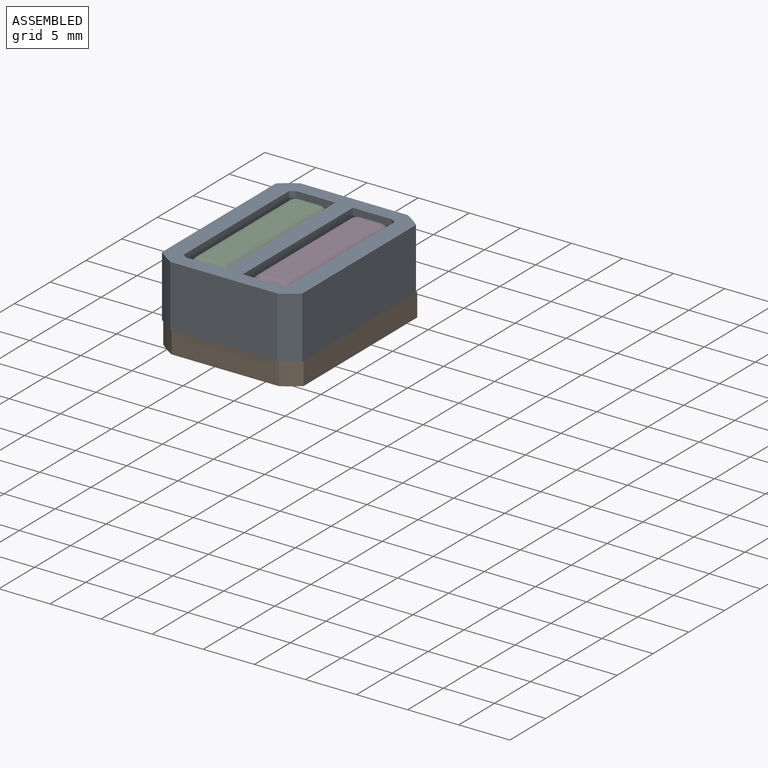
[diagram: assembled view]
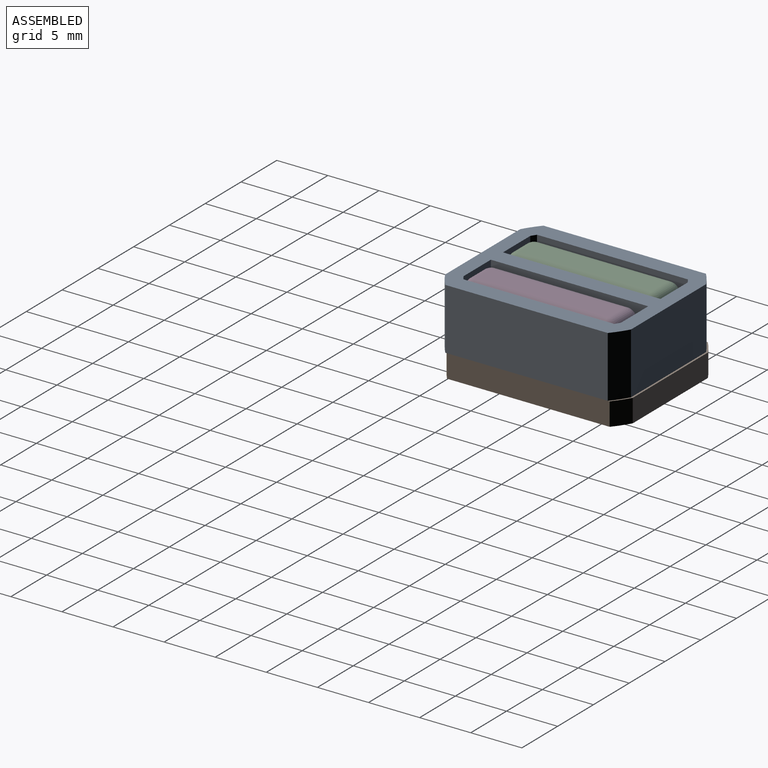
[diagram: assembled view, second angle]
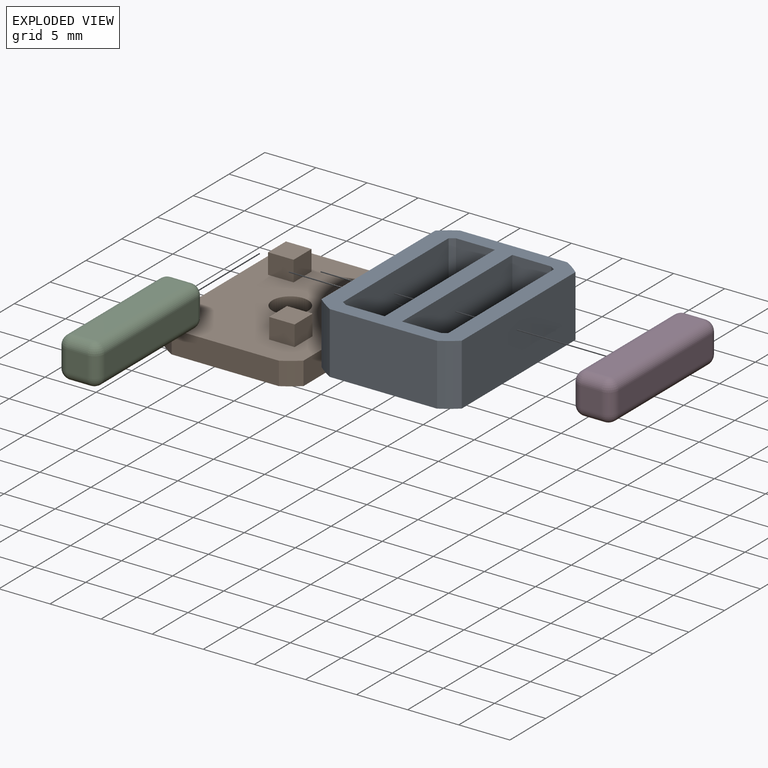
[diagram: exploded view]
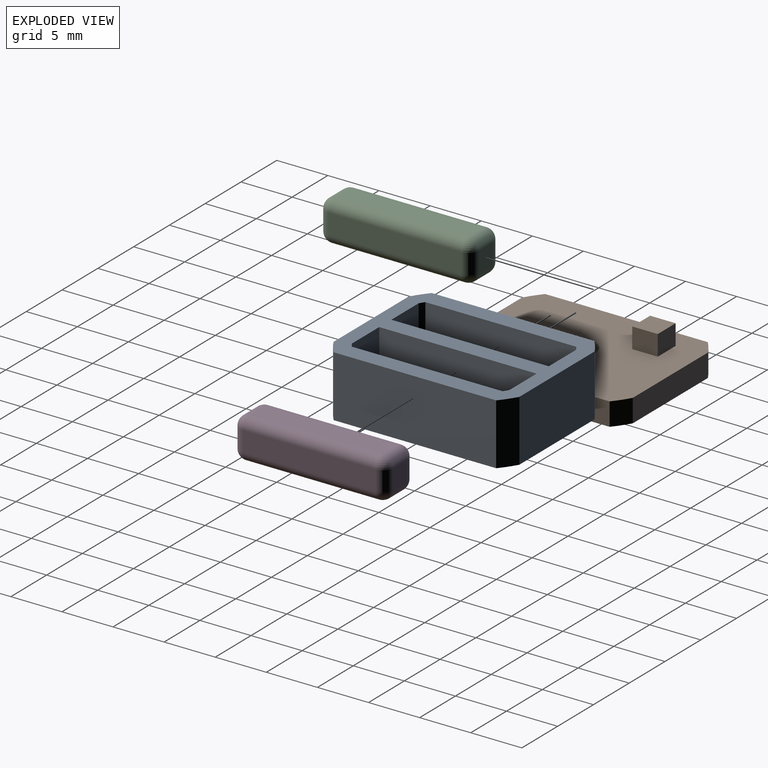
[diagram: exploded view, second angle]
ASSEMBLY  parts=4 mates=2
PART A: 32 faces, bbox 13.7x18.2x6 mm
  f0: plane 18.19x13.72mm, normal (0,0,-1), area 229.8mm2, adj f3,f4,f5,f6,f7,f8,f9,f22
  f1: plane 15.4x4.3mm, normal (0,0,1), area 57.9mm2, adj f15,f16,f17,f18,f19,f21,f28,f29
  f2: plane 15.4x4.3mm, normal (0,0,1), area 57.9mm2, adj f10,f11,f12,f13,f14,f20,f24,f25
  f3: plane 15.9x6mm, normal (1,0,0), area 95.4mm2, adj f0,f4,f22,f23
  f4: cylinder r=10.5mm len=6mm, axis (0,0,-1), area 11.9mm2, adj f0,f3,f5,f23
  f5: plane 10.5x6mm, normal (0,1,0), area 63mm2, adj f0,f4,f6,f23
  f6: cylinder r=10.5mm len=6mm, axis (0,0,-1), area 11.9mm2, adj f0,f5,f7,f23
  f7: plane 15.9x6mm, normal (-1,0,0), area 95.4mm2, adj f0,f6,f8,f23
  f8: cylinder r=10.5mm len=6mm, axis (0,0,-1), area 11.9mm2, adj f0,f7,f9,f23
  f9: plane 10.5x6mm, normal (0,-1,0), area 63mm2, adj f0,f8,f22,f23
  f10: cylinder r=9mm len=4mm, axis (0,0,-1), area 2.3mm2, adj f2,f11,f20,f23
  f11: plane 4x3.81mm, normal (0,-1,0), area 15.2mm2, adj f2,f10,f12,f23
  f12: plane 15.4x4mm, normal (-1,0,0), area 61.6mm2, adj f2,f11,f13,f23
  f13: plane 4x3.81mm, normal (0,1,0), area 15.2mm2, adj f2,f12,f14,f23
  f14: cylinder r=9mm len=4mm, axis (0,0,-1), area 2.3mm2, adj f2,f13,f20,f23
  f15: plane 4x3.81mm, normal (0,-1,0), area 15.2mm2, adj f1,f16,f21,f23
  f16: cylinder r=9mm len=4mm, axis (0,0,-1), area 2.3mm2, adj f1,f15,f17,f23
  f17: plane 14.76x4mm, normal (-1,0,0), area 59mm2, adj f1,f16,f18,f23
  f18: cylinder r=9mm len=4mm, axis (0,0,-1), area 2.3mm2, adj f1,f17,f19,f23
  f19: plane 4x3.81mm, normal (0,1,0), area 15.2mm2, adj f1,f18,f21,f23
  f20: plane 14.76x4mm, normal (1,0,0), area 59mm2, adj f2,f10,f14,f23
  f21: plane 15.4x4mm, normal (1,0,0), area 61.6mm2, adj f1,f15,f19,f23
  f22: cylinder r=10.5mm len=6mm, axis (0,0,-1), area 11.9mm2, adj f0,f3,f9,f23
  f23: plane 18.19x13.72mm, normal (0,0,1), area 113.9mm2, adj f3,f4,f5,f6,f7,f8,f9,f10
  f24: plane 2.85x2mm, normal (0,-1,0), area 5.7mm2, adj f0,f2,f25,f27
  f25: plane 2.85x2mm, normal (-1,0,0), area 5.7mm2, adj f0,f2,f24,f26
  f26: plane 2.85x2mm, normal (0,1,0), area 5.7mm2, adj f0,f2,f25,f27
  f27: plane 2.85x2mm, normal (1,0,0), area 5.7mm2, adj f0,f2,f24,f26
  f28: plane 2.85x2mm, normal (0,-1,0), area 5.7mm2, adj f0,f1,f29,f31
  f29: plane 2.85x2mm, normal (-1,0,0), area 5.7mm2, adj f0,f1,f28,f30
  f30: plane 2.85x2mm, normal (0,1,0), area 5.7mm2, adj f0,f1,f29,f31
  f31: plane 2.85x2mm, normal (1,0,0), area 5.7mm2, adj f0,f1,f28,f30
PART B: 21 faces, bbox 13.7x18.2x4.3 mm
  f0: plane 18.19x13.72mm, normal (0,0,1), area 223.9mm2, adj f1,f2,f3,f4,f5,f6,f7,f8
  f1: cylinder r=10.5mm len=2.25mm, axis (0,0,-1), area 4.4mm2, adj f0,f2,f8,f9
  f2: plane 15.9x2.25mm, normal (1,0,0), area 35.8mm2, adj f0,f1,f3,f9
  f3: cylinder r=10.5mm len=2.25mm, axis (0,0,-1), area 4.4mm2, adj f0,f2,f4,f9
  f4: plane 10.5x2.25mm, normal (0,1,0), area 23.6mm2, adj f0,f3,f5,f9
  f5: cylinder r=10.5mm len=2.25mm, axis (0,0,-1), area 4.4mm2, adj f0,f4,f6,f9
  f6: plane 15.9x2.25mm, normal (-1,0,0), area 35.8mm2, adj f0,f5,f7,f9
  f7: cylinder r=10.5mm len=2.25mm, axis (0,0,-1), area 4.4mm2, adj f0,f6,f8,f9
  f8: plane 10.5x2.25mm, normal (0,-1,0), area 23.6mm2, adj f0,f1,f7,f9
  f9: plane 18.19x13.72mm, normal (0,0,-1), area 236.4mm2, adj f1,f2,f3,f4,f5,f6,f7,f8
  f10: cylinder r=1.75mm len=3.5mm, axis (0,0,1), area 24.7mm2, adj f0,f9
  f11: plane 2.5x2mm, normal (0,-1,0), area 5mm2, adj f0,f12,f14,f15
  f12: plane 2.5x2mm, normal (1,0,0), area 5mm2, adj f0,f11,f13,f15
  f13: plane 2.5x2mm, normal (0,1,0), area 5mm2, adj f0,f12,f14,f15
  f14: plane 2.5x2mm, normal (-1,0,0), area 5mm2, adj f0,f11,f13,f15
  f15: plane 2.5x2.5mm, normal (0,0,1), area 6.2mm2, adj f11,f12,f13,f14
  f16: plane 2.5x2mm, normal (0,1,0), area 5mm2, adj f0,f17,f19,f20
  f17: plane 2.5x2mm, normal (-1,0,0), area 5mm2, adj f0,f16,f18,f20
  f18: plane 2.5x2mm, normal (0,-1,0), area 5mm2, adj f0,f17,f19,f20
  f19: plane 2.5x2mm, normal (1,0,0), area 5mm2, adj f0,f16,f18,f20
  f20: plane 2.5x2.5mm, normal (0,0,1), area 6.2mm2, adj f16,f17,f18,f19
PART C: 26 faces, bbox 4x15x4 mm
  f0: plane 13x2mm, normal (0,0,1), area 26mm2, adj f14,f19,f22,f25
  f1: plane 13x2mm, normal (-1,0,0), area 26mm2, adj f11,f20,f21,f25
  f2: plane 13x2mm, normal (0,0,-1), area 26mm2, adj f6,f10,f11,f12
  f3: plane 13x2mm, normal (1,0,0), area 26mm2, adj f6,f9,f13,f14
  f4: plane 2x2mm, normal (0,-1,0), area 4mm2, adj f9,f10,f19,f20
  f5: plane 2x2mm, normal (0,1,0), area 4mm2, adj f12,f13,f21,f22
  f6: cylinder r=1mm len=13mm, axis (0,-1,0), area 20.4mm2, adj f2,f3,f7,f8
  f7: sphere r=1mm, area 1.6mm2, adj f6,f9,f10
  f8: sphere r=1mm, area 1.6mm2, adj f6,f12,f13
  f9: cylinder r=1mm len=2mm, axis (0,0,-1), area 3.1mm2, adj f3,f4,f7,f15
  f10: cylinder r=1mm len=2mm, axis (-1,0,0), area 3.1mm2, adj f2,f4,f7,f16
  f11: cylinder r=1mm len=13mm, axis (0,1,0), area 20.4mm2, adj f1,f2,f16,f17
  f12: cylinder r=1mm len=2mm, axis (1,0,0), area 3.1mm2, adj f2,f5,f8,f17
  f13: cylinder r=1mm len=2mm, axis (0,0,1), area 3.1mm2, adj f3,f5,f8,f18
  f14: cylinder r=1mm len=13mm, axis (0,1,0), area 20.4mm2, adj f0,f3,f15,f18
  f15: sphere r=1mm, area 1.6mm2, adj f9,f14,f19
  f16: sphere r=1mm, area 1.6mm2, adj f10,f11,f20
  f17: sphere r=1mm, area 1.6mm2, adj f11,f12,f21
  f18: sphere r=1mm, area 1.6mm2, adj f13,f14,f22
  f19: cylinder r=1mm len=2mm, axis (1,0,0), area 3.1mm2, adj f0,f4,f15,f23
  f20: cylinder r=1mm len=2mm, axis (0,0,1), area 3.1mm2, adj f1,f4,f16,f23
  f21: cylinder r=1mm len=2mm, axis (0,0,-1), area 3.1mm2, adj f1,f5,f17,f24
  f22: cylinder r=1mm len=2mm, axis (-1,0,0), area 3.1mm2, adj f0,f5,f18,f24
  f23: sphere r=1mm, area 1.6mm2, adj f19,f20,f25
  f24: sphere r=1mm, area 1.6mm2, adj f21,f22,f25
  f25: cylinder r=1mm len=13mm, axis (0,-1,0), area 20.4mm2, adj f0,f1,f23,f24
PART D: same geometry as C
PLACE A t=(-14.56,7.06,-5.77)mm
PLACE B t=(45.44,7.24,-8.02)mm
PLACE C t=(12.69,14.36,-1.77)mm
PLACE D t=(18.69,14.36,-1.77)mm
MATE fastened B.f15 <-> A.f2  axis (0,0,1) through (11.89,13.49,-3.77)mm
MATE fastened C.f4 <-> A.f13  axis (0,-1,0) through (12.69,-0.64,-1.77)mm
